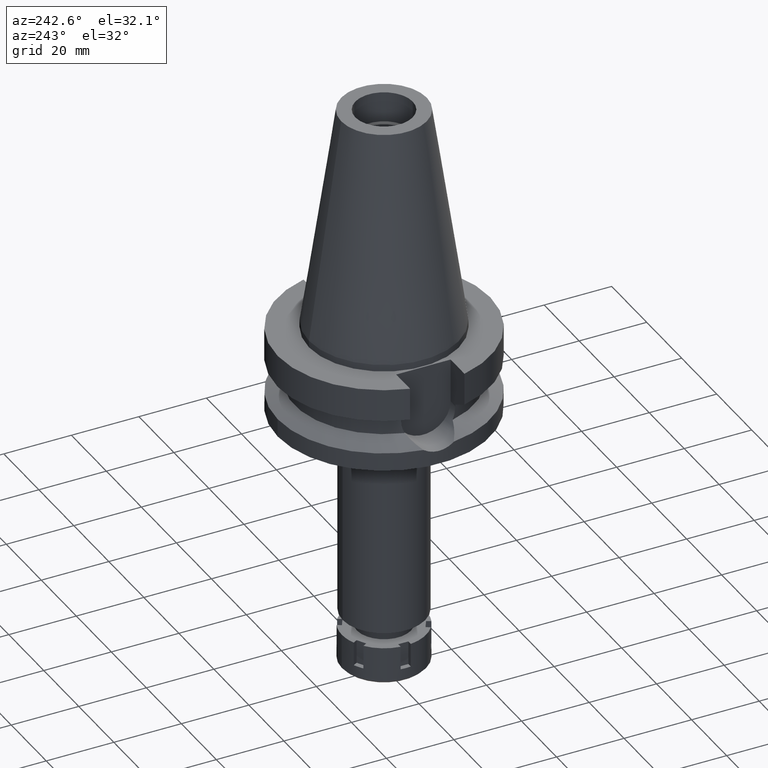
[diagram: clean part render]
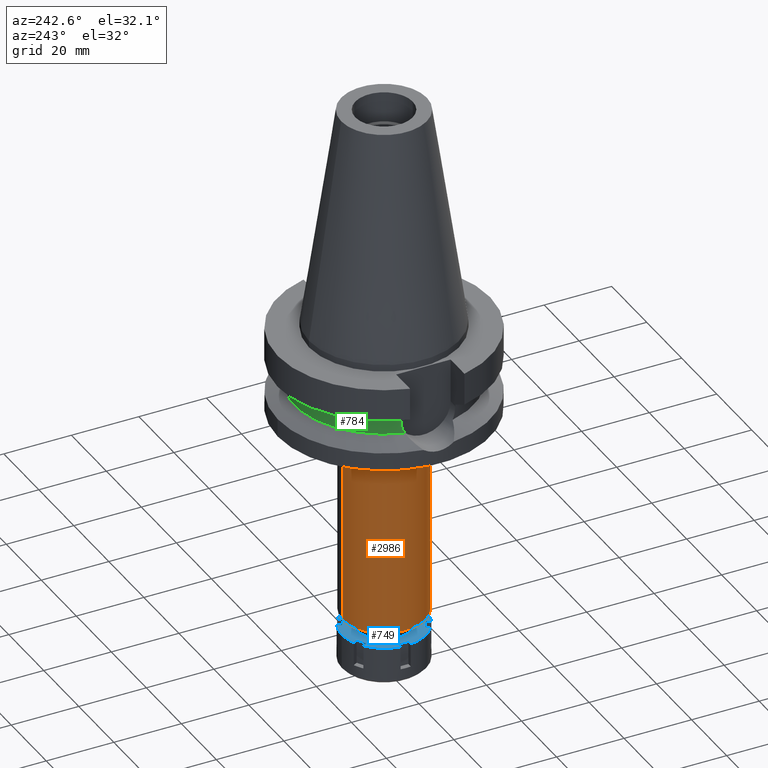
[diagram: same view with three faces highlighted in distinct colors, each labeled with its STEP entity id]
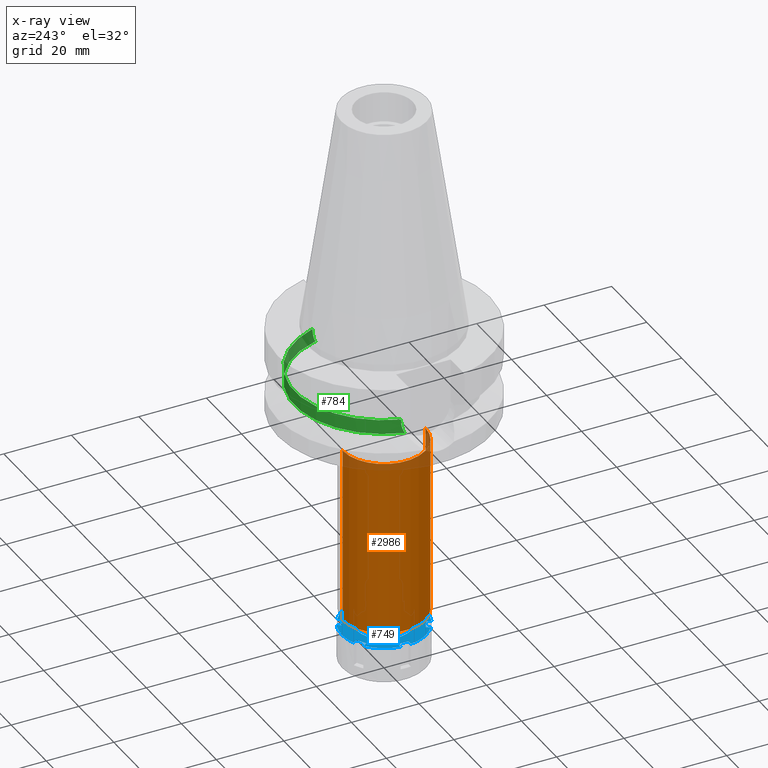
[diagram: x-ray of the same camera — body ghosted, the three highlighted faces saturated]
A machine part, auxiliary view with three faces highlighted in distinct colors.
The next image is the same camera in x-ray (body ghosted, the three faces saturated) — at least one of them is partly hidden behind the body in this view.
Their STEP definitions:

[orange] entity #2986 — the highlighted cylindrical surface (partial cylindrical patch) has radius 12.25 mm, axis along (0, 0, -1).
#32 = EDGE_CURVE ( 'NONE', #3567, #2227, #3034, .T. ) ;
#59 = ORIENTED_EDGE ( 'NONE', *, *, #528, .F. ) ;
#146 = VERTEX_POINT ( 'NONE', #1042 ) ;
#158 = VECTOR ( 'NONE', #1288, 1000.000000000000000 ) ;
#274 = VECTOR ( 'NONE', #3138, 1000.000000000000000 ) ;
#290 = EDGE_CURVE ( 'NONE', #2227, #146, #1425, .T. ) ;
#435 = CARTESIAN_POINT ( 'NONE',  ( 0.0000000000000000000, -12.25000000000000000, -37.00000000000000000 ) ) ;
#528 = EDGE_CURVE ( 'NONE', #3567, #1028, #2423, .T. ) ;
#617 = AXIS2_PLACEMENT_3D ( 'NONE', #2052, #894, #2016 ) ;
#648 = DIRECTION ( 'NONE',  ( 0.0000000000000000000, 0.0000000000000000000, 1.000000000000000000 ) ) ;
#677 = AXIS2_PLACEMENT_3D ( 'NONE', #3171, #648, #1871 ) ;
#753 = ORIENTED_EDGE ( 'NONE', *, *, #2998, .T. ) ;
#894 = DIRECTION ( 'NONE',  ( 0.0000000000000000000, 0.0000000000000000000, -1.000000000000000000 ) ) ;
#950 = ORIENTED_EDGE ( 'NONE', *, *, #290, .T. ) ;
#1028 = VERTEX_POINT ( 'NONE', #1963 ) ;
#1042 = CARTESIAN_POINT ( 'NONE',  ( 0.0000000000000000000, 12.25000000000000000, -89.50000000000000000 ) ) ;
#1097 = AXIS2_PLACEMENT_3D ( 'NONE', #2384, #1830, #2444 ) ;
#1190 = CARTESIAN_POINT ( 'NONE',  ( 0.0000000000000000000, 12.25000000000000000, -37.00000000000000000 ) ) ;
#1288 = DIRECTION ( 'NONE',  ( 0.0000000000000000000, 0.0000000000000000000, -1.000000000000000000 ) ) ;
#1342 = CARTESIAN_POINT ( 'NONE',  ( 0.0000000000000000000, 12.25000000000000000, -37.00000000000000000 ) ) ;
#1425 = LINE ( 'NONE', #1190, #274 ) ;
#1830 = DIRECTION ( 'NONE',  ( 0.0000000000000000000, 0.0000000000000000000, -1.000000000000000000 ) ) ;
#1871 = DIRECTION ( 'NONE',  ( 0.0000000000000000000, 1.000000000000000000, 0.0000000000000000000 ) ) ;
#1963 = CARTESIAN_POINT ( 'NONE',  ( 0.0000000000000000000, -12.25000000000000000, -89.50000000000000000 ) ) ;
#2016 = DIRECTION ( 'NONE',  ( 0.0000000000000000000, -1.000000000000000000, 0.0000000000000000000 ) ) ;
#2052 = CARTESIAN_POINT ( 'NONE',  ( 0.0000000000000000000, 2.126231772679999832E-14, 73.62000000000000455 ) ) ;
#2227 = VERTEX_POINT ( 'NONE', #1342 ) ;
#2271 = CIRCLE ( 'NONE', #677, 12.25000000000000000 ) ;
#2296 = CYLINDRICAL_SURFACE ( 'NONE', #617, 12.25000000000000000 ) ;
#2321 = EDGE_LOOP ( 'NONE', ( #753, #59, #3499, #950 ) ) ;
#2384 = CARTESIAN_POINT ( 'NONE',  ( 0.0000000000000000000, 0.0000000000000000000, -37.00000000000000000 ) ) ;
#2423 = LINE ( 'NONE', #435, #158 ) ;
#2444 = DIRECTION ( 'NONE',  ( 0.0000000000000000000, -1.000000000000000000, 0.0000000000000000000 ) ) ;
#2986 = ADVANCED_FACE ( 'NONE', ( #3384 ), #2296, .T. ) ;
#2998 = EDGE_CURVE ( 'NONE', #146, #1028, #2271, .T. ) ;
#3034 = CIRCLE ( 'NONE', #1097, 12.25000000000000000 ) ;
#3138 = DIRECTION ( 'NONE',  ( 0.0000000000000000000, 0.0000000000000000000, -1.000000000000000000 ) ) ;
#3171 = CARTESIAN_POINT ( 'NONE',  ( 0.0000000000000000000, 2.126231772679999832E-14, -89.50000000000000000 ) ) ;
#3202 = CARTESIAN_POINT ( 'NONE',  ( 0.0000000000000000000, -12.25000000000000000, -37.00000000000000000 ) ) ;
#3384 = FACE_OUTER_BOUND ( 'NONE', #2321, .T. ) ;
#3499 = ORIENTED_EDGE ( 'NONE', *, *, #32, .T. ) ;
#3567 = VERTEX_POINT ( 'NONE', #3202 ) ;

[blue] entity #749 — the highlighted planar face has unit normal (0, 0, -1).
#40 = VERTEX_POINT ( 'NONE', #2106 ) ;
#45 = DIRECTION ( 'NONE',  ( 0.0000000000000000000, 0.0000000000000000000, -1.000000000000000000 ) ) ;
#62 = CARTESIAN_POINT ( 'NONE',  ( 4.905798717319999724, 11.49709263010000093, 0.0000000000000000000 ) ) ;
#83 = CARTESIAN_POINT ( 'NONE',  ( 6.799038105676999955, 8.776279441629000644, 0.0000000000000000000 ) ) ;
#90 = CARTESIAN_POINT ( 'NONE',  ( 11.00000000000000000, 1.500000000000000000, 0.0000000000000000000 ) ) ;
#102 = VERTEX_POINT ( 'NONE', #1589 ) ;
#110 = EDGE_CURVE ( 'NONE', #2860, #2549, #3533, .T. ) ;
#112 = DIRECTION ( 'NONE',  ( 0.9927738916792689938, -0.1199999999999962208, 0.0000000000000000000 ) ) ;
#134 = VECTOR ( 'NONE', #581, 1000.000000000000000 ) ;
#151 = ORIENTED_EDGE ( 'NONE', *, *, #1968, .F. ) ;
#169 = LINE ( 'NONE', #1812, #1318 ) ;
#180 = DIRECTION ( 'NONE',  ( 0.0000000000000000000, -1.000000000000000000, 0.0000000000000000000 ) ) ;
#190 = CARTESIAN_POINT ( 'NONE',  ( -12.40967364599000078, 1.500000000000000000, 0.0000000000000000000 ) ) ;
#198 = DIRECTION ( 'NONE',  ( 0.0000000000000000000, 0.0000000000000000000, -1.000000000000000000 ) ) ;
#200 = CARTESIAN_POINT ( 'NONE',  ( -6.799038105676999955, -8.776279441629000644, 0.0000000000000000000 ) ) ;
#206 = CIRCLE ( 'NONE', #1793, 12.50000000000000000 ) ;
#212 = ORIENTED_EDGE ( 'NONE', *, *, #861, .F. ) ;
#234 = LINE ( 'NONE', #1678, #2051 ) ;
#251 = CARTESIAN_POINT ( 'NONE',  ( 0.0000000000000000000, -12.50000000000000000, 0.0000000000000000000 ) ) ;
#262 = CIRCLE ( 'NONE', #1497, 12.50000000000000178 ) ;
#319 = LINE ( 'NONE', #1419, #2282 ) ;
#330 = VECTOR ( 'NONE', #2699, 1000.000000000000114 ) ;
#334 = CARTESIAN_POINT ( 'NONE',  ( 0.0000000000000000000, 0.0000000000000000000, 0.0000000000000000000 ) ) ;
#391 = EDGE_CURVE ( 'NONE', #2753, #995, #3253, .T. ) ;
#431 = ORIENTED_EDGE ( 'NONE', *, *, #391, .F. ) ;
#432 = CARTESIAN_POINT ( 'NONE',  ( -4.200961894324001022, -10.27627944162999896, 0.0000000000000000000 ) ) ;
#467 = ORIENTED_EDGE ( 'NONE', *, *, #3207, .F. ) ;
#474 = ORIENTED_EDGE ( 'NONE', *, *, #1647, .F. ) ;
#522 = AXIS2_PLACEMENT_3D ( 'NONE', #907, #2890, #2623 ) ;
#523 = CARTESIAN_POINT ( 'NONE',  ( 4.905798717319999724, 11.49709263010000093, 0.0000000000000000000 ) ) ;
#535 = CARTESIAN_POINT ( 'NONE',  ( -7.503874928671999456, 9.997092630101999333, 0.0000000000000000000 ) ) ;
#551 = AXIS2_PLACEMENT_3D ( 'NONE', #3489, #3509, #180 ) ;
#576 = CARTESIAN_POINT ( 'NONE',  ( 0.0000000000000000000, 8.000000000000000000, 0.0000000000000000000 ) ) ;
#581 = DIRECTION ( 'NONE',  ( 0.0000000000000000000, 1.000000000000000000, 0.0000000000000000000 ) ) ;
#582 = ORIENTED_EDGE ( 'NONE', *, *, #1900, .T. ) ;
#610 = ORIENTED_EDGE ( 'NONE', *, *, #2782, .F. ) ;
#612 = CARTESIAN_POINT ( 'NONE',  ( -12.40967364599000078, -1.500000000000000000, 0.0000000000000000000 ) ) ;
#622 = VERTEX_POINT ( 'NONE', #2467 ) ;
#626 = ORIENTED_EDGE ( 'NONE', *, *, #2202, .F. ) ;
#629 = LINE ( 'NONE', #62, #1144 ) ;
#632 = VECTOR ( 'NONE', #3556, 1000.000000000000000 ) ;
#646 = DIRECTION ( 'NONE',  ( 0.5000000000000169864, 0.8660254037844288266, 0.0000000000000000000 ) ) ;
#653 = EDGE_LOOP ( 'NONE', ( #2952, #610, #474, #1461, #212, #703, #964, #3200, #1303, #1327, #3534, #898, #1605, #1836, #626, #431, #1898, #467, #1901, #1019, #1855, #582, #2948, #151, #1208, #2479 ) ) ;
#687 = CARTESIAN_POINT ( 'NONE',  ( -4.905798717319999724, -11.49709263010000093, 0.0000000000000000000 ) ) ;
#695 = EDGE_CURVE ( 'NONE', #1430, #2828, #234, .T. ) ;
#703 = ORIENTED_EDGE ( 'NONE', *, *, #2877, .F. ) ;
#706 = DIRECTION ( 'NONE',  ( 0.8660254037843856390, -0.5000000000000918154, 0.0000000000000000000 ) ) ;
#710 = EDGE_CURVE ( 'NONE', #1326, #1535, #1108, .T. ) ;
#749 = ADVANCED_FACE ( 'NONE', ( #2614, #1720 ), #1206, .F. ) ;
#781 = EDGE_LOOP ( 'NONE', ( #2313, #1420 ) ) ;
#782 = EDGE_CURVE ( 'NONE', #1572, #102, #3132, .T. ) ;
#787 = DIRECTION ( 'NONE',  ( -0.5000000000004037881, 0.8660254037842055608, 0.0000000000000000000 ) ) ;
#788 = CARTESIAN_POINT ( 'NONE',  ( -6.799038105676999955, 8.776279441629000644, 0.0000000000000000000 ) ) ;
#835 = DIRECTION ( 'NONE',  ( 0.5000000000004037881, 0.8660254037842055608, 0.0000000000000000000 ) ) ;
#856 = DIRECTION ( 'NONE',  ( 0.0000000000000000000, 0.0000000000000000000, -1.000000000000000000 ) ) ;
#859 = DIRECTION ( 'NONE',  ( 0.0000000000000000000, 0.0000000000000000000, -1.000000000000000000 ) ) ;
#861 = EDGE_CURVE ( 'NONE', #2691, #2725, #319, .T. ) ;
#891 = VERTEX_POINT ( 'NONE', #2375 ) ;
#895 = CARTESIAN_POINT ( 'NONE',  ( -11.00000000000000000, -1.500000000000000000, 0.0000000000000000000 ) ) ;
#898 = ORIENTED_EDGE ( 'NONE', *, *, #2648, .F. ) ;
#907 = CARTESIAN_POINT ( 'NONE',  ( 0.0000000000000000000, 0.0000000000000000000, 0.0000000000000000000 ) ) ;
#935 = VECTOR ( 'NONE', #646, 1000.000000000000114 ) ;
#936 = CARTESIAN_POINT ( 'NONE',  ( 0.0000000000000000000, 0.0000000000000000000, 0.0000000000000000000 ) ) ;
#964 = ORIENTED_EDGE ( 'NONE', *, *, #2929, .T. ) ;
#980 = CIRCLE ( 'NONE', #3267, 12.50000000000000000 ) ;
#991 = VECTOR ( 'NONE', #3504, 1000.000000000000114 ) ;
#994 = VECTOR ( 'NONE', #2596, 1000.000000000000000 ) ;
#995 = VERTEX_POINT ( 'NONE', #2708 ) ;
#1007 = VERTEX_POINT ( 'NONE', #190 ) ;
#1016 = VERTEX_POINT ( 'NONE', #1577 ) ;
#1019 = ORIENTED_EDGE ( 'NONE', *, *, #782, .T. ) ;
#1026 = CARTESIAN_POINT ( 'NONE',  ( 0.0000000000000000000, 0.0000000000000000000, 0.0000000000000000000 ) ) ;
#1038 = VECTOR ( 'NONE', #3073, 1000.000000000000114 ) ;
#1059 = EDGE_CURVE ( 'NONE', #2725, #1117, #2464, .T. ) ;
#1079 = LINE ( 'NONE', #1631, #2180 ) ;
#1095 = DIRECTION ( 'NONE',  ( -0.3924638973854109314, 0.9197674104082257385, 0.0000000000000000000 ) ) ;
#1101 = DIRECTION ( 'NONE',  ( 0.6003099942937818456, 0.7997674104081758939, 0.0000000000000000000 ) ) ;
#1108 = CIRCLE ( 'NONE', #1161, 12.50000000000000178 ) ;
#1110 = LINE ( 'NONE', #3023, #2524 ) ;
#1112 = DIRECTION ( 'NONE',  ( 0.0000000000000000000, 0.0000000000000000000, -1.000000000000000000 ) ) ;
#1117 = VERTEX_POINT ( 'NONE', #1317 ) ;
#1144 = VECTOR ( 'NONE', #1435, 1000.000000000000114 ) ;
#1161 = AXIS2_PLACEMENT_3D ( 'NONE', #1370, #2494, #1101 ) ;
#1182 = CARTESIAN_POINT ( 'NONE',  ( -4.905798717319999724, -11.49709263010000093, 0.0000000000000000000 ) ) ;
#1197 = DIRECTION ( 'NONE',  ( 1.000000000000000000, 2.646250338402999903E-14, 0.0000000000000000000 ) ) ;
#1206 = PLANE ( 'NONE',  #3618 ) ;
#1208 = ORIENTED_EDGE ( 'NONE', *, *, #3108, .F. ) ;
#1255 = DIRECTION ( 'NONE',  ( -0.6003099942937818456, -0.7997674104081758939, 0.0000000000000000000 ) ) ;
#1259 = CARTESIAN_POINT ( 'NONE',  ( 12.40967364599000078, 1.500000000000000000, 0.0000000000000000000 ) ) ;
#1303 = ORIENTED_EDGE ( 'NONE', *, *, #695, .T. ) ;
#1317 = CARTESIAN_POINT ( 'NONE',  ( -4.200961894323000934, 10.27627944162999896, 0.0000000000000000000 ) ) ;
#1318 = VECTOR ( 'NONE', #706, 1000.000000000000000 ) ;
#1326 = VERTEX_POINT ( 'NONE', #3114 ) ;
#1327 = ORIENTED_EDGE ( 'NONE', *, *, #3554, .F. ) ;
#1329 = CIRCLE ( 'NONE', #1799, 12.50000000000000355 ) ;
#1348 = VERTEX_POINT ( 'NONE', #576 ) ;
#1370 = CARTESIAN_POINT ( 'NONE',  ( 0.0000000000000000000, 0.0000000000000000000, 0.0000000000000000000 ) ) ;
#1388 = DIRECTION ( 'NONE',  ( -1.000000000000000000, -2.394226496649999866E-14, 0.0000000000000000000 ) ) ;
#1390 = EDGE_CURVE ( 'NONE', #3013, #2715, #2287, .T. ) ;
#1419 = CARTESIAN_POINT ( 'NONE',  ( -7.503874928671999456, 9.997092630101999333, 0.0000000000000000000 ) ) ;
#1420 = ORIENTED_EDGE ( 'NONE', *, *, #3531, .F. ) ;
#1430 = VERTEX_POINT ( 'NONE', #895 ) ;
#1435 = DIRECTION ( 'NONE',  ( -0.5000000000004030110, -0.8660254037842058938, 0.0000000000000000000 ) ) ;
#1461 = ORIENTED_EDGE ( 'NONE', *, *, #1059, .F. ) ;
#1480 = DIRECTION ( 'NONE',  ( 0.0000000000000000000, 1.000000000000000000, 0.0000000000000000000 ) ) ;
#1497 = AXIS2_PLACEMENT_3D ( 'NONE', #1026, #3471, #1255 ) ;
#1512 = VERTEX_POINT ( 'NONE', #687 ) ;
#1535 = VERTEX_POINT ( 'NONE', #1259 ) ;
#1541 = DIRECTION ( 'NONE',  ( -0.8660254037843856390, -0.5000000000000918154, 0.0000000000000000000 ) ) ;
#1560 = DIRECTION ( 'NONE',  ( -0.8660254037843856390, 0.5000000000000918154, 0.0000000000000000000 ) ) ;
#1572 = VERTEX_POINT ( 'NONE', #2435 ) ;
#1577 = CARTESIAN_POINT ( 'NONE',  ( 0.0000000000000000000, -8.000000000000000000, 0.0000000000000000000 ) ) ;
#1589 = CARTESIAN_POINT ( 'NONE',  ( 11.00000000000000000, -1.500000000000000000, 0.0000000000000000000 ) ) ;
#1605 = ORIENTED_EDGE ( 'NONE', *, *, #1737, .F. ) ;
#1614 = CARTESIAN_POINT ( 'NONE',  ( -6.799038105676999955, 8.776279441629000644, 0.0000000000000000000 ) ) ;
#1621 = EDGE_CURVE ( 'NONE', #891, #1430, #1110, .T. ) ;
#1631 = CARTESIAN_POINT ( 'NONE',  ( -4.200961894323000934, 10.27627944162999896, 0.0000000000000000000 ) ) ;
#1644 = CIRCLE ( 'NONE', #522, 8.000000000000000000 ) ;
#1647 = EDGE_CURVE ( 'NONE', #1117, #622, #1079, .T. ) ;
#1672 = DIRECTION ( 'NONE',  ( 0.0000000000000000000, -1.000000000000000000, 0.0000000000000000000 ) ) ;
#1673 = CIRCLE ( 'NONE', #551, 8.000000000000000000 ) ;
#1678 = CARTESIAN_POINT ( 'NONE',  ( -11.00000000000000000, -1.500000000000000000, 0.0000000000000000000 ) ) ;
#1720 = FACE_BOUND ( 'NONE', #781, .T. ) ;
#1737 = EDGE_CURVE ( 'NONE', #1512, #1891, #2251, .T. ) ;
#1763 = CARTESIAN_POINT ( 'NONE',  ( 6.799038105676999955, -8.776279441629000644, 0.0000000000000000000 ) ) ;
#1791 = DIRECTION ( 'NONE',  ( -0.9927738916792689938, 0.1199999999999962208, 0.0000000000000000000 ) ) ;
#1793 = AXIS2_PLACEMENT_3D ( 'NONE', #936, #2058, #112 ) ;
#1799 = AXIS2_PLACEMENT_3D ( 'NONE', #2235, #1112, #1095 ) ;
#1812 = CARTESIAN_POINT ( 'NONE',  ( 4.200961894324001022, 10.27627944162999896, 0.0000000000000000000 ) ) ;
#1836 = ORIENTED_EDGE ( 'NONE', *, *, #3182, .F. ) ;
#1850 = CARTESIAN_POINT ( 'NONE',  ( 0.0000000000000000000, 12.50000000000000000, 0.0000000000000000000 ) ) ;
#1855 = ORIENTED_EDGE ( 'NONE', *, *, #2304, .T. ) ;
#1857 = VECTOR ( 'NONE', #1541, 1000.000000000000000 ) ;
#1891 = VERTEX_POINT ( 'NONE', #3401 ) ;
#1898 = ORIENTED_EDGE ( 'NONE', *, *, #2544, .F. ) ;
#1900 = EDGE_CURVE ( 'NONE', #2520, #1535, #2609, .T. ) ;
#1901 = ORIENTED_EDGE ( 'NONE', *, *, #2509, .F. ) ;
#1909 = DIRECTION ( 'NONE',  ( 0.0000000000000000000, 0.0000000000000000000, -1.000000000000000000 ) ) ;
#1929 = CARTESIAN_POINT ( 'NONE',  ( 7.503874928671999456, -9.997092630101999333, 0.0000000000000000000 ) ) ;
#1939 = EDGE_CURVE ( 'NONE', #1348, #1016, #1644, .T. ) ;
#1968 = EDGE_CURVE ( 'NONE', #2779, #1326, #3170, .T. ) ;
#2051 = VECTOR ( 'NONE', #1388, 1000.000000000000000 ) ;
#2058 = DIRECTION ( 'NONE',  ( 0.0000000000000000000, 0.0000000000000000000, -1.000000000000000000 ) ) ;
#2106 = CARTESIAN_POINT ( 'NONE',  ( 7.503874928671999456, -9.997092630101999333, 0.0000000000000000000 ) ) ;
#2150 = CIRCLE ( 'NONE', #2848, 12.50000000000000000 ) ;
#2180 = VECTOR ( 'NONE', #787, 1000.000000000000114 ) ;
#2189 = DIRECTION ( 'NONE',  ( 0.0000000000000000000, -1.000000000000000000, 0.0000000000000000000 ) ) ;
#2202 = EDGE_CURVE ( 'NONE', #995, #3642, #2262, .T. ) ;
#2235 = CARTESIAN_POINT ( 'NONE',  ( 0.0000000000000000000, 0.0000000000000000000, 0.0000000000000000000 ) ) ;
#2251 = LINE ( 'NONE', #1182, #3226 ) ;
#2259 = CARTESIAN_POINT ( 'NONE',  ( 11.00000000000000000, -1.500000000000000000, 0.0000000000000000000 ) ) ;
#2262 = CIRCLE ( 'NONE', #2389, 12.50000000000000355 ) ;
#2274 = CARTESIAN_POINT ( 'NONE',  ( 0.0000000000000000000, 0.0000000000000000000, 0.0000000000000000000 ) ) ;
#2282 = VECTOR ( 'NONE', #2878, 1000.000000000000114 ) ;
#2286 = VERTEX_POINT ( 'NONE', #2863 ) ;
#2287 = CIRCLE ( 'NONE', #2414, 12.50000000000000000 ) ;
#2304 = EDGE_CURVE ( 'NONE', #102, #2520, #2521, .T. ) ;
#2313 = ORIENTED_EDGE ( 'NONE', *, *, #1939, .F. ) ;
#2317 = DIRECTION ( 'NONE',  ( 1.000000000000000000, -2.425729476869999993E-14, 0.0000000000000000000 ) ) ;
#2338 = CARTESIAN_POINT ( 'NONE',  ( 0.0000000000000000000, 0.0000000000000000000, 0.0000000000000000000 ) ) ;
#2375 = CARTESIAN_POINT ( 'NONE',  ( -11.00000000000000000, 1.500000000000000000, 0.0000000000000000000 ) ) ;
#2387 = CARTESIAN_POINT ( 'NONE',  ( 6.799038105676999955, -8.776279441629000644, 0.0000000000000000000 ) ) ;
#2389 = AXIS2_PLACEMENT_3D ( 'NONE', #3310, #198, #3579 ) ;
#2398 = LINE ( 'NONE', #1763, #1857 ) ;
#2401 = CARTESIAN_POINT ( 'NONE',  ( 4.200961894323000934, -10.27627944162999896, 0.0000000000000000000 ) ) ;
#2414 = AXIS2_PLACEMENT_3D ( 'NONE', #2274, #856, #1480 ) ;
#2435 = CARTESIAN_POINT ( 'NONE',  ( 12.40967364599000078, -1.500000000000000000, 0.0000000000000000000 ) ) ;
#2464 = LINE ( 'NONE', #1614, #632 ) ;
#2467 = CARTESIAN_POINT ( 'NONE',  ( -4.905798717318000435, 11.49709263010000093, 0.0000000000000000000 ) ) ;
#2479 = ORIENTED_EDGE ( 'NONE', *, *, #2956, .F. ) ;
#2494 = DIRECTION ( 'NONE',  ( 0.0000000000000000000, 0.0000000000000000000, -1.000000000000000000 ) ) ;
#2506 = LINE ( 'NONE', #1929, #1038 ) ;
#2509 = EDGE_CURVE ( 'NONE', #1572, #40, #206, .T. ) ;
#2520 = VERTEX_POINT ( 'NONE', #90 ) ;
#2521 = LINE ( 'NONE', #2259, #134 ) ;
#2524 = VECTOR ( 'NONE', #2189, 1000.000000000000000 ) ;
#2531 = CARTESIAN_POINT ( 'NONE',  ( 4.200961894323000934, -10.27627944162999896, 0.0000000000000000000 ) ) ;
#2544 = EDGE_CURVE ( 'NONE', #2999, #2753, #2398, .T. ) ;
#2549 = VERTEX_POINT ( 'NONE', #3194 ) ;
#2590 = CARTESIAN_POINT ( 'NONE',  ( 11.00000000000000000, 1.500000000000000000, 0.0000000000000000000 ) ) ;
#2596 = DIRECTION ( 'NONE',  ( -1.000000000000000000, 2.268214575773999827E-14, 0.0000000000000000000 ) ) ;
#2609 = LINE ( 'NONE', #2590, #2762 ) ;
#2614 = FACE_OUTER_BOUND ( 'NONE', #653, .T. ) ;
#2623 = DIRECTION ( 'NONE',  ( 0.0000000000000000000, 1.000000000000000000, 0.0000000000000000000 ) ) ;
#2627 = CARTESIAN_POINT ( 'NONE',  ( -12.40967364599000078, 1.500000000000000000, 0.0000000000000000000 ) ) ;
#2648 = EDGE_CURVE ( 'NONE', #1891, #2860, #2958, .T. ) ;
#2691 = VERTEX_POINT ( 'NONE', #535 ) ;
#2699 = DIRECTION ( 'NONE',  ( -0.5000000000000169864, -0.8660254037844288266, 0.0000000000000000000 ) ) ;
#2708 = CARTESIAN_POINT ( 'NONE',  ( 4.905798717318000435, -11.49709263010000093, 0.0000000000000000000 ) ) ;
#2715 = VERTEX_POINT ( 'NONE', #523 ) ;
#2725 = VERTEX_POINT ( 'NONE', #788 ) ;
#2753 = VERTEX_POINT ( 'NONE', #2531 ) ;
#2762 = VECTOR ( 'NONE', #1197, 1000.000000000000000 ) ;
#2779 = VERTEX_POINT ( 'NONE', #3619 ) ;
#2782 = EDGE_CURVE ( 'NONE', #622, #3013, #1329, .T. ) ;
#2783 = CARTESIAN_POINT ( 'NONE',  ( 0.0000000000000000000, 0.0000000000000000000, 0.0000000000000000000 ) ) ;
#2828 = VERTEX_POINT ( 'NONE', #612 ) ;
#2848 = AXIS2_PLACEMENT_3D ( 'NONE', #2783, #1909, #1672 ) ;
#2860 = VERTEX_POINT ( 'NONE', #3146 ) ;
#2863 = CARTESIAN_POINT ( 'NONE',  ( 4.200961894324001022, 10.27627944162999896, 0.0000000000000000000 ) ) ;
#2877 = EDGE_CURVE ( 'NONE', #1007, #2691, #980, .T. ) ;
#2878 = DIRECTION ( 'NONE',  ( 0.5000000000000169864, -0.8660254037844288266, 0.0000000000000000000 ) ) ;
#2890 = DIRECTION ( 'NONE',  ( 0.0000000000000000000, 0.0000000000000000000, 1.000000000000000000 ) ) ;
#2894 = CARTESIAN_POINT ( 'NONE',  ( 12.40967364599000078, -1.500000000000000000, 0.0000000000000000000 ) ) ;
#2929 = EDGE_CURVE ( 'NONE', #1007, #891, #3189, .T. ) ;
#2948 = ORIENTED_EDGE ( 'NONE', *, *, #710, .F. ) ;
#2952 = ORIENTED_EDGE ( 'NONE', *, *, #1390, .F. ) ;
#2956 = EDGE_CURVE ( 'NONE', #2715, #2286, #629, .T. ) ;
#2958 = LINE ( 'NONE', #432, #3606 ) ;
#2999 = VERTEX_POINT ( 'NONE', #2387 ) ;
#3013 = VERTEX_POINT ( 'NONE', #1850 ) ;
#3023 = CARTESIAN_POINT ( 'NONE',  ( -11.00000000000000000, 1.500000000000000000, 0.0000000000000000000 ) ) ;
#3073 = DIRECTION ( 'NONE',  ( -0.5000000000000169864, 0.8660254037844288266, 0.0000000000000000000 ) ) ;
#3108 = EDGE_CURVE ( 'NONE', #2286, #2779, #169, .T. ) ;
#3114 = CARTESIAN_POINT ( 'NONE',  ( 7.503874928671999456, 9.997092630101999333, 0.0000000000000000000 ) ) ;
#3132 = LINE ( 'NONE', #2894, #994 ) ;
#3146 = CARTESIAN_POINT ( 'NONE',  ( -6.799038105676999955, -8.776279441629000644, 0.0000000000000000000 ) ) ;
#3170 = LINE ( 'NONE', #83, #935 ) ;
#3182 = EDGE_CURVE ( 'NONE', #3642, #1512, #2150, .T. ) ;
#3189 = LINE ( 'NONE', #2627, #3372 ) ;
#3194 = CARTESIAN_POINT ( 'NONE',  ( -7.503874928671999456, -9.997092630101999333, 0.0000000000000000000 ) ) ;
#3200 = ORIENTED_EDGE ( 'NONE', *, *, #1621, .T. ) ;
#3207 = EDGE_CURVE ( 'NONE', #40, #2999, #2506, .T. ) ;
#3226 = VECTOR ( 'NONE', #835, 1000.000000000000114 ) ;
#3253 = LINE ( 'NONE', #2401, #991 ) ;
#3267 = AXIS2_PLACEMENT_3D ( 'NONE', #334, #45, #1791 ) ;
#3310 = CARTESIAN_POINT ( 'NONE',  ( 0.0000000000000000000, 0.0000000000000000000, 0.0000000000000000000 ) ) ;
#3372 = VECTOR ( 'NONE', #2317, 1000.000000000000000 ) ;
#3401 = CARTESIAN_POINT ( 'NONE',  ( -4.200961894324001022, -10.27627944162999896, 0.0000000000000000000 ) ) ;
#3440 = DIRECTION ( 'NONE',  ( 0.0000000000000000000, -1.000000000000000000, 0.0000000000000000000 ) ) ;
#3471 = DIRECTION ( 'NONE',  ( 0.0000000000000000000, 0.0000000000000000000, -1.000000000000000000 ) ) ;
#3489 = CARTESIAN_POINT ( 'NONE',  ( 0.0000000000000000000, 0.0000000000000000000, 0.0000000000000000000 ) ) ;
#3504 = DIRECTION ( 'NONE',  ( 0.5000000000004037881, -0.8660254037842055608, 0.0000000000000000000 ) ) ;
#3509 = DIRECTION ( 'NONE',  ( 0.0000000000000000000, 0.0000000000000000000, 1.000000000000000000 ) ) ;
#3531 = EDGE_CURVE ( 'NONE', #1016, #1348, #1673, .T. ) ;
#3533 = LINE ( 'NONE', #200, #330 ) ;
#3534 = ORIENTED_EDGE ( 'NONE', *, *, #110, .F. ) ;
#3554 = EDGE_CURVE ( 'NONE', #2549, #2828, #262, .T. ) ;
#3556 = DIRECTION ( 'NONE',  ( 0.8660254037843856390, 0.5000000000000918154, 0.0000000000000000000 ) ) ;
#3579 = DIRECTION ( 'NONE',  ( 0.3924638973854109314, -0.9197674104082257385, 0.0000000000000000000 ) ) ;
#3606 = VECTOR ( 'NONE', #1560, 1000.000000000000000 ) ;
#3618 = AXIS2_PLACEMENT_3D ( 'NONE', #2338, #859, #3440 ) ;
#3619 = CARTESIAN_POINT ( 'NONE',  ( 6.799038105676999955, 8.776279441629000644, 0.0000000000000000000 ) ) ;
#3642 = VERTEX_POINT ( 'NONE', #251 ) ;

[green] entity #784 — the highlighted cylindrical surface (partial cylindrical patch) has radius 26.5 mm, axis along (0, 0, -1).
#9 = CIRCLE ( 'NONE', #555, 26.50000000000000711 ) ;
#22 = EDGE_CURVE ( 'NONE', #3177, #1262, #9, .T. ) ;
#24 = VECTOR ( 'NONE', #2504, 1000.000000000000227 ) ;
#30 = CYLINDRICAL_SURFACE ( 'NONE', #573, 26.50000000000000000 ) ;
#36 = CARTESIAN_POINT ( 'NONE',  ( 25.44390410199662611, 7.408324269797933681, -18.11690676793093147 ) ) ;
#49 = CARTESIAN_POINT ( 'NONE',  ( 0.0000000000000000000, 2.126231772679999832E-14, 73.62000000000000455 ) ) ;
#75 = CARTESIAN_POINT ( 'NONE',  ( 25.27267991477270925, 7.973333693788947407, -16.24500092464753820 ) ) ;
#94 = CARTESIAN_POINT ( 'NONE',  ( 25.24772266958000344, 8.050000000000000711, -14.94999999999999929 ) ) ;
#187 = EDGE_CURVE ( 'NONE', #1404, #1262, #865, .T. ) ;
#205 = CARTESIAN_POINT ( 'NONE',  ( -25.24772266958000699, 8.050000000000018474, -15.27000344023669420 ) ) ;
#223 = CARTESIAN_POINT ( 'NONE',  ( -25.24772216408000247, 8.050001585445999197, -14.45224488440999977 ) ) ;
#339 = DIRECTION ( 'NONE',  ( 0.0000000000000000000, -1.000000000000000000, 0.0000000000000000000 ) ) ;
#355 = EDGE_CURVE ( 'NONE', #1171, #1404, #1998, .T. ) ;
#361 = CARTESIAN_POINT ( 'NONE',  ( 25.53175183775000079, 7.097862220092999941, -18.74774300138999905 ) ) ;
#533 = CARTESIAN_POINT ( 'NONE',  ( -25.27269700110156236, 7.971767412699268363, -16.08147680843536520 ) ) ;
#541 = B_SPLINE_CURVE_WITH_KNOTS ( 'NONE', 3,
 ( #1077, #205, #2188, #533, #2475, #2216, #1959, #3568, #2250, #2461, #2801, #2487, #850, #3041 ),
 .UNSPECIFIED., .F., .F.,
 ( 4, 2, 2, 1, 1, 2, 2, 4 ),
 ( 0.0000000000000000000, 0.2499999999999942268, 0.3749999999999912292, 0.4374999999999910072, 0.4687499999999909517, 0.4843749999999907851, 0.4999999999999906741, 1.000000000000000000 ),
 .UNSPECIFIED. ) ;
#555 = AXIS2_PLACEMENT_3D ( 'NONE', #2718, #764, #1311 ) ;
#573 = AXIS2_PLACEMENT_3D ( 'NONE', #49, #2845, #339 ) ;
#605 = CARTESIAN_POINT ( 'NONE',  ( 25.48480653794729633, 7.266729367325905464, -18.43213561454581750 ) ) ;
#621 = CARTESIAN_POINT ( 'NONE',  ( 25.39161474384865969, 7.584925632586635658, -17.65165132630789913 ) ) ;
#764 = DIRECTION ( 'NONE',  ( 0.0000000000000000000, 0.0000000000000000000, -1.000000000000000000 ) ) ;
#784 = ADVANCED_FACE ( 'NONE', ( #1481 ), #30, .T. ) ;
#850 = CARTESIAN_POINT ( 'NONE',  ( -25.43789037939440334, 7.435491690444283819, -18.11672414067871273 ) ) ;
#865 = LINE ( 'NONE', #1971, #24 ) ;
#913 = VERTEX_POINT ( 'NONE', #2417 ) ;
#941 = CARTESIAN_POINT ( 'NONE',  ( -25.24772216408000247, 8.050001585445999197, -14.45224488440999977 ) ) ;
#1003 = ORIENTED_EDGE ( 'NONE', *, *, #355, .F. ) ;
#1018 = VERTEX_POINT ( 'NONE', #3269 ) ;
#1077 = CARTESIAN_POINT ( 'NONE',  ( -25.24772266958000344, 8.050000000000000711, -14.94999999999999929 ) ) ;
#1171 = VERTEX_POINT ( 'NONE', #1676 ) ;
#1203 = CIRCLE ( 'NONE', #3600, 26.50000000000000000 ) ;
#1214 = CARTESIAN_POINT ( 'NONE',  ( 25.24772266957999989, 8.050000000000000711, -15.58981081152011150 ) ) ;
#1262 = VERTEX_POINT ( 'NONE', #3129 ) ;
#1280 = ORIENTED_EDGE ( 'NONE', *, *, #3233, .F. ) ;
#1311 = DIRECTION ( 'NONE',  ( -0.9527442516822307583, 0.3037735849057093818, 0.0000000000000000000 ) ) ;
#1404 = VERTEX_POINT ( 'NONE', #3387 ) ;
#1481 = FACE_OUTER_BOUND ( 'NONE', #1966, .T. ) ;
#1485 = CARTESIAN_POINT ( 'NONE',  ( 25.34384339547100851, 7.742469616338665261, -17.15619314864496303 ) ) ;
#1676 = CARTESIAN_POINT ( 'NONE',  ( 25.53175183775000079, 7.097862220092999941, -18.74774300138999905 ) ) ;
#1748 = CARTESIAN_POINT ( 'NONE',  ( 25.32840589094138295, 7.792665650279695377, -16.96921537932697177 ) ) ;
#1959 = CARTESIAN_POINT ( 'NONE',  ( -25.30215890781839860, 7.877570599496780623, -16.61088255778458844 ) ) ;
#1966 = EDGE_LOOP ( 'NONE', ( #2074, #2538, #1003, #3015, #1280, #3441 ) ) ;
#1971 = CARTESIAN_POINT ( 'NONE',  ( 25.24772266958000344, 8.050000000000000711, -14.94999999999999929 ) ) ;
#1990 = EDGE_CURVE ( 'NONE', #3177, #913, #3240, .T. ) ;
#1998 = B_SPLINE_CURVE_WITH_KNOTS ( 'NONE', 3,
 ( #361, #605, #36, #621, #2865, #2309, #1485, #3412, #1748, #2023, #2618, #75, #1214, #94 ),
 .UNSPECIFIED., .F., .F.,
 ( 4, 2, 2, 1, 1, 2, 2, 4 ),
 ( 0.0000000000000000000, 0.2500000000000069944, 0.3750000000000103251, 0.4375000000000121014, 0.4687500000000131006, 0.4843750000000136002, 0.5000000000000140998, 1.000000000000000000 ),
 .UNSPECIFIED. ) ;
#2023 = CARTESIAN_POINT ( 'NONE',  ( 25.32546474064437092, 7.802209548893450197, -16.93201787083657450 ) ) ;
#2074 = ORIENTED_EDGE ( 'NONE', *, *, #22, .T. ) ;
#2188 = CARTESIAN_POINT ( 'NONE',  ( -25.25396625246038695, 8.030896711159567047, -15.59378553532208755 ) ) ;
#2216 = CARTESIAN_POINT ( 'NONE',  ( -25.29454954118293486, 7.902007388337063176, -16.48871296866783354 ) ) ;
#2250 = CARTESIAN_POINT ( 'NONE',  ( -25.31652402624242981, 7.831177078178416906, -16.81429685341538516 ) ) ;
#2309 = CARTESIAN_POINT ( 'NONE',  ( 25.35408314257738027, 7.708964442574153253, -17.26963666371925044 ) ) ;
#2417 = CARTESIAN_POINT ( 'NONE',  ( -25.24772266958000344, 8.050000000000000711, -14.94999999999999929 ) ) ;
#2461 = CARTESIAN_POINT ( 'NONE',  ( -25.31954826170012751, 7.821386849067262226, -16.85495274079940486 ) ) ;
#2475 = CARTESIAN_POINT ( 'NONE',  ( -25.28050147970205330, 7.946982733722296466, -16.24437200643366097 ) ) ;
#2487 = CARTESIAN_POINT ( 'NONE',  ( -25.36818832152595959, 7.663695285297998261, -17.48840541843554419 ) ) ;
#2504 = DIRECTION ( 'NONE',  ( 2.937338247753855257E-06, -9.212565000944541462E-06, 0.9999999999532502848 ) ) ;
#2538 = ORIENTED_EDGE ( 'NONE', *, *, #187, .F. ) ;
#2618 = CARTESIAN_POINT ( 'NONE',  ( 25.32415423298266077, 7.806459850236247000, -16.91522840166216923 ) ) ;
#2718 = CARTESIAN_POINT ( 'NONE',  ( 0.0000000000000000000, 1.065333950388000029E-14, -14.45225699861000024 ) ) ;
#2801 = CARTESIAN_POINT ( 'NONE',  ( -25.32122245610151978, 7.815962707354739969, -16.87706809355950455 ) ) ;
#2817 = DIRECTION ( 'NONE',  ( 0.0000000000000000000, 0.0000000000000000000, 1.000000000000000000 ) ) ;
#2845 = DIRECTION ( 'NONE',  ( 0.0000000000000000000, 0.0000000000000000000, -1.000000000000000000 ) ) ;
#2865 = CARTESIAN_POINT ( 'NONE',  ( 25.37569567376233692, 7.637836187913177532, -17.49781209683455785 ) ) ;
#2942 = CARTESIAN_POINT ( 'NONE',  ( 0.0000000000000000000, 0.0000000000000000000, -18.74774300138999905 ) ) ;
#3015 = ORIENTED_EDGE ( 'NONE', *, *, #3276, .T. ) ;
#3041 = CARTESIAN_POINT ( 'NONE',  ( -25.53175183775000079, 7.097862220092999941, -18.74774300138999905 ) ) ;
#3129 = CARTESIAN_POINT ( 'NONE',  ( 25.24772413151999828, 8.049995414833000851, -14.45229203526999839 ) ) ;
#3177 = VERTEX_POINT ( 'NONE', #223 ) ;
#3233 = EDGE_CURVE ( 'NONE', #913, #1018, #541, .T. ) ;
#3240 = LINE ( 'NONE', #941, #3337 ) ;
#3269 = CARTESIAN_POINT ( 'NONE',  ( -25.53175183775000079, 7.097862220092999941, -18.74774300138999905 ) ) ;
#3276 = EDGE_CURVE ( 'NONE', #1171, #1018, #1203, .T. ) ;
#3337 = VECTOR ( 'NONE', #3468, 1000.000000000000000 ) ;
#3387 = CARTESIAN_POINT ( 'NONE',  ( 25.24772266958000344, 8.050000000000000711, -14.94999999999999929 ) ) ;
#3412 = CARTESIAN_POINT ( 'NONE',  ( 25.33288843119767719, 7.778112047367065074, -17.02510900872042399 ) ) ;
#3415 = DIRECTION ( 'NONE',  ( 0.0000000000000000000, 1.000000000000000000, 0.0000000000000000000 ) ) ;
#3441 = ORIENTED_EDGE ( 'NONE', *, *, #1990, .F. ) ;
#3468 = DIRECTION ( 'NONE',  ( -1.015568351878009506E-06, -3.185192911757033818E-06, -0.9999999999944115814 ) ) ;
#3568 = CARTESIAN_POINT ( 'NONE',  ( -25.31206084004277557, 7.845614529398870829, -16.75329855851926908 ) ) ;
#3600 = AXIS2_PLACEMENT_3D ( 'NONE', #2942, #2817, #3415 ) ;